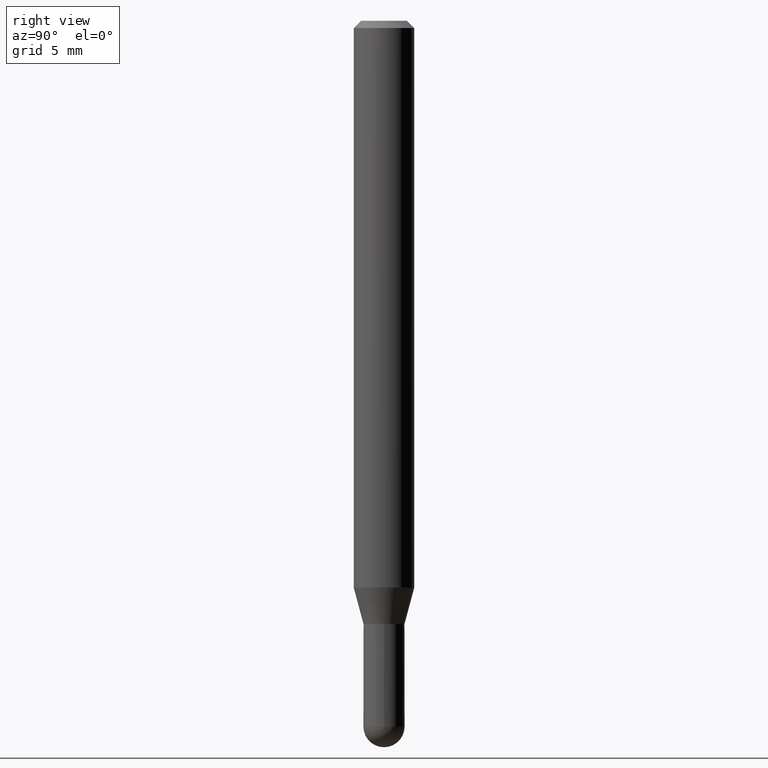
[diagram: clean part render]
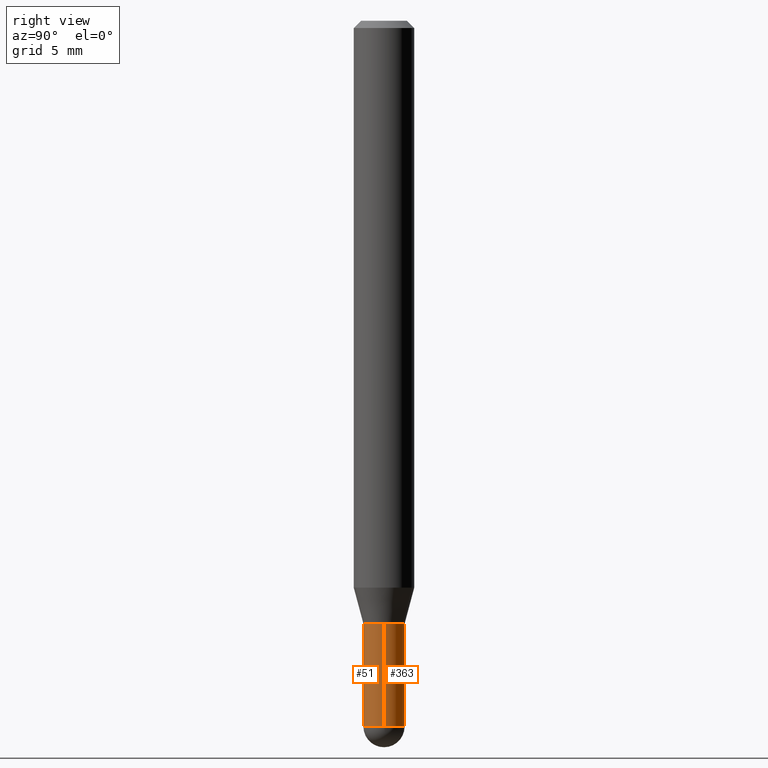
[diagram: same view with one multi-face feature highlighted, each face labeled with its STEP entity id]
A machine part, right view. The highlighted faces form ONE feature: a constant-radius fillet chain: 2 tangent blend faces with common blend radius 1.0795 mm. The faces share edges in the B-rep.
Their STEP definitions:
[1] entity #363 (Cylinder):
#17 = DIRECTION ( 'NONE',  ( -2.445468806185136597E-29, 3.491481338843145583E-15, 1.000000000000000000 ) ) ;
#18 = VECTOR ( 'NONE', #268, 39.37007874015748143 ) ;
#22 = DIRECTION ( 'NONE',  ( -2.445468806185136597E-29, 3.491481338843145583E-15, 1.000000000000000000 ) ) ;
#25 = CARTESIAN_POINT ( 'NONE',  ( 0.04250000000000000999, -2.967759138016664042E-16, 2.072375129713273202E-30 ) ) ;
#33 = EDGE_CURVE ( 'NONE', #298, #42, #230, .T. ) ;
#42 = VERTEX_POINT ( 'NONE', #271 ) ;
#48 = DIRECTION ( 'NONE',  ( 1.000000000000000000, -6.982962677686273810E-15, 0.000000000000000000 ) ) ;
#54 = CARTESIAN_POINT ( 'NONE',  ( 3.564270785014837509E-29, -5.088834051363884851E-15, -1.457500000000000240 ) ) ;
#79 = VERTEX_POINT ( 'NONE', #347 ) ;
#84 = EDGE_CURVE ( 'NONE', #478, #42, #183, .T. ) ;
#88 = ORIENTED_EDGE ( 'NONE', *, *, #159, .T. ) ;
#92 = DIRECTION ( 'NONE',  ( 1.000000000000000000, -6.982962677686273810E-15, 0.000000000000000000 ) ) ;
#96 = VERTEX_POINT ( 'NONE', #317 ) ;
#107 = DIRECTION ( 'NONE',  ( -2.445468806185136877E-29, 3.491481338843145188E-15, 1.000000000000000000 ) ) ;
#108 = CYLINDRICAL_SURFACE ( 'NONE', #394, 0.04250000000000000999 ) ;
#159 = EDGE_CURVE ( 'NONE', #96, #298, #344, .T. ) ;
#161 = CARTESIAN_POINT ( 'NONE',  ( -0.04250000000000000999, -4.415883496413759874E-15, -1.457500000000000240 ) ) ;
#163 = CARTESIAN_POINT ( 'NONE',  ( 0.04249999999999999611, -4.643670180661383298E-15, -1.245000000000000329 ) ) ;
#164 = ORIENTED_EDGE ( 'NONE', *, *, #395, .T. ) ;
#166 = VECTOR ( 'NONE', #107, 39.37007874015748143 ) ;
#174 = AXIS2_PLACEMENT_3D ( 'NONE', #201, #17, #48 ) ;
#179 = DIRECTION ( 'NONE',  ( 1.000000000000000000, -6.982962677686266711E-15, 4.876176775795935793E-29 ) ) ;
#183 = CIRCLE ( 'NONE', #206, 0.04249999999999999611 ) ;
#191 = CARTESIAN_POINT ( 'NONE',  ( 3.044608663700495534E-29, -4.346894266859716647E-15, -1.245000000000000329 ) ) ;
#201 = CARTESIAN_POINT ( 'NONE',  ( 3.564270785014837509E-29, -5.088834051363884851E-15, -1.457500000000000240 ) ) ;
#206 = AXIS2_PLACEMENT_3D ( 'NONE', #191, #501, #350 ) ;
#227 = CARTESIAN_POINT ( 'NONE',  ( -0.04250000000000000999, 3.019806626980426500E-16, -2.090547413358335560E-30 ) ) ;
#230 = LINE ( 'NONE', #227, #18 ) ;
#259 = CARTESIAN_POINT ( 'NONE',  ( 0.000000000000000000, 0.000000000000000000, 0.000000000000000000 ) ) ;
#268 = DIRECTION ( 'NONE',  ( -2.445468806185136877E-29, 3.491481338843145188E-15, 1.000000000000000000 ) ) ;
#271 = CARTESIAN_POINT ( 'NONE',  ( -0.04249999999999999611, -4.415883496413758296E-15, -1.245000000000000329 ) ) ;
#272 = ORIENTED_EDGE ( 'NONE', *, *, #33, .T. ) ;
#285 = DIRECTION ( 'NONE',  ( -2.445468806185136597E-29, 3.491481338843145583E-15, 1.000000000000000000 ) ) ;
#298 = VERTEX_POINT ( 'NONE', #161 ) ;
#303 = AXIS2_PLACEMENT_3D ( 'NONE', #54, #285, #92 ) ;
#317 = CARTESIAN_POINT ( 'NONE',  ( 3.019806626980785432E-16, 0.04249999999999495154, -1.457500000000000462 ) ) ;
#323 = EDGE_LOOP ( 'NONE', ( #88, #272, #372, #440, #164 ) ) ;
#329 = CIRCLE ( 'NONE', #174, 0.04250000000000000999 ) ;
#344 = CIRCLE ( 'NONE', #303, 0.04250000000000000999 ) ;
#347 = CARTESIAN_POINT ( 'NONE',  ( 0.04250000000000000999, -5.014640072913468189E-15, -1.457500000000000240 ) ) ;
#350 = DIRECTION ( 'NONE',  ( 1.000000000000000000, -6.982962677686265133E-15, 0.000000000000000000 ) ) ;
#363 = ADVANCED_FACE ( 'NONE', ( #455 ), #108, .T. ) ;
#372 = ORIENTED_EDGE ( 'NONE', *, *, #84, .F. ) ;
#394 = AXIS2_PLACEMENT_3D ( 'NONE', #259, #22, #179 ) ;
#395 = EDGE_CURVE ( 'NONE', #79, #96, #329, .T. ) ;
#440 = ORIENTED_EDGE ( 'NONE', *, *, #503, .F. ) ;
#454 = LINE ( 'NONE', #25, #166 ) ;
#455 = FACE_OUTER_BOUND ( 'NONE', #323, .T. ) ;
#478 = VERTEX_POINT ( 'NONE', #163 ) ;
#501 = DIRECTION ( 'NONE',  ( -2.445468806185136597E-29, 3.491481338843145583E-15, 1.000000000000000000 ) ) ;
#503 = EDGE_CURVE ( 'NONE', #79, #478, #454, .T. ) ;
[2] entity #51 (Cylinder):
#12 = CARTESIAN_POINT ( 'NONE',  ( 3.564270785014837509E-29, -5.088834051363884851E-15, -1.457500000000000240 ) ) ;
#18 = VECTOR ( 'NONE', #268, 39.37007874015748143 ) ;
#25 = CARTESIAN_POINT ( 'NONE',  ( 0.04250000000000000999, -2.967759138016664042E-16, 2.072375129713273202E-30 ) ) ;
#30 = CIRCLE ( 'NONE', #449, 0.04250000000000000999 ) ;
#33 = EDGE_CURVE ( 'NONE', #298, #42, #230, .T. ) ;
#34 = CARTESIAN_POINT ( 'NONE',  ( 0.000000000000000000, 0.000000000000000000, 0.000000000000000000 ) ) ;
#42 = VERTEX_POINT ( 'NONE', #271 ) ;
#43 = CIRCLE ( 'NONE', #228, 0.04250000000000000999 ) ;
#44 = DIRECTION ( 'NONE',  ( -2.445468806185136597E-29, 3.491481338843145583E-15, 1.000000000000000000 ) ) ;
#51 = ADVANCED_FACE ( 'NONE', ( #348 ), #311, .T. ) ;
#79 = VERTEX_POINT ( 'NONE', #347 ) ;
#101 = EDGE_CURVE ( 'NONE', #298, #396, #43, .T. ) ;
#107 = DIRECTION ( 'NONE',  ( -2.445468806185136877E-29, 3.491481338843145188E-15, 1.000000000000000000 ) ) ;
#117 = DIRECTION ( 'NONE',  ( -2.445468806185136597E-29, 3.491481338843145583E-15, 1.000000000000000000 ) ) ;
#118 = AXIS2_PLACEMENT_3D ( 'NONE', #34, #117, #187 ) ;
#127 = AXIS2_PLACEMENT_3D ( 'NONE', #445, #253, #331 ) ;
#161 = CARTESIAN_POINT ( 'NONE',  ( -0.04250000000000000999, -4.415883496413759874E-15, -1.457500000000000240 ) ) ;
#163 = CARTESIAN_POINT ( 'NONE',  ( 0.04249999999999999611, -4.643670180661383298E-15, -1.245000000000000329 ) ) ;
#166 = VECTOR ( 'NONE', #107, 39.37007874015748143 ) ;
#187 = DIRECTION ( 'NONE',  ( 1.000000000000000000, -6.982962677686266711E-15, 4.876176775795935793E-29 ) ) ;
#202 = ORIENTED_EDGE ( 'NONE', *, *, #33, .F. ) ;
#208 = CARTESIAN_POINT ( 'NONE',  ( 3.564270785014837509E-29, -5.088834051363884851E-15, -1.457500000000000240 ) ) ;
#227 = CARTESIAN_POINT ( 'NONE',  ( -0.04250000000000000999, 3.019806626980426500E-16, -2.090547413358335560E-30 ) ) ;
#228 = AXIS2_PLACEMENT_3D ( 'NONE', #208, #44, #233 ) ;
#230 = LINE ( 'NONE', #227, #18 ) ;
#233 = DIRECTION ( 'NONE',  ( 1.000000000000000000, -6.982962677686273810E-15, 0.000000000000000000 ) ) ;
#244 = DIRECTION ( 'NONE',  ( 1.000000000000000000, -6.982962677686273810E-15, 0.000000000000000000 ) ) ;
#253 = DIRECTION ( 'NONE',  ( -2.445468806185136597E-29, 3.491481338843145583E-15, 1.000000000000000000 ) ) ;
#268 = DIRECTION ( 'NONE',  ( -2.445468806185136877E-29, 3.491481338843145188E-15, 1.000000000000000000 ) ) ;
#271 = CARTESIAN_POINT ( 'NONE',  ( -0.04249999999999999611, -4.415883496413758296E-15, -1.245000000000000329 ) ) ;
#280 = EDGE_CURVE ( 'NONE', #42, #478, #336, .T. ) ;
#298 = VERTEX_POINT ( 'NONE', #161 ) ;
#311 = CYLINDRICAL_SURFACE ( 'NONE', #118, 0.04250000000000000999 ) ;
#315 = ORIENTED_EDGE ( 'NONE', *, *, #280, .F. ) ;
#331 = DIRECTION ( 'NONE',  ( 1.000000000000000000, -6.982962677686265133E-15, 0.000000000000000000 ) ) ;
#336 = CIRCLE ( 'NONE', #127, 0.04249999999999999611 ) ;
#347 = CARTESIAN_POINT ( 'NONE',  ( 0.04250000000000000999, -5.014640072913468189E-15, -1.457500000000000240 ) ) ;
#348 = FACE_OUTER_BOUND ( 'NONE', #365, .T. ) ;
#356 = CARTESIAN_POINT ( 'NONE',  ( -2.967759138016310534E-16, -0.04250000000000514477, -1.457500000000000018 ) ) ;
#357 = ORIENTED_EDGE ( 'NONE', *, *, #503, .T. ) ;
#365 = EDGE_LOOP ( 'NONE', ( #202, #439, #466, #357, #315 ) ) ;
#396 = VERTEX_POINT ( 'NONE', #356 ) ;
#439 = ORIENTED_EDGE ( 'NONE', *, *, #101, .T. ) ;
#445 = CARTESIAN_POINT ( 'NONE',  ( 3.044608663700495534E-29, -4.346894266859716647E-15, -1.245000000000000329 ) ) ;
#449 = AXIS2_PLACEMENT_3D ( 'NONE', #12, #486, #244 ) ;
#454 = LINE ( 'NONE', #25, #166 ) ;
#466 = ORIENTED_EDGE ( 'NONE', *, *, #477, .T. ) ;
#477 = EDGE_CURVE ( 'NONE', #396, #79, #30, .T. ) ;
#478 = VERTEX_POINT ( 'NONE', #163 ) ;
#486 = DIRECTION ( 'NONE',  ( -2.445468806185136597E-29, 3.491481338843145583E-15, 1.000000000000000000 ) ) ;
#503 = EDGE_CURVE ( 'NONE', #79, #478, #454, .T. ) ;